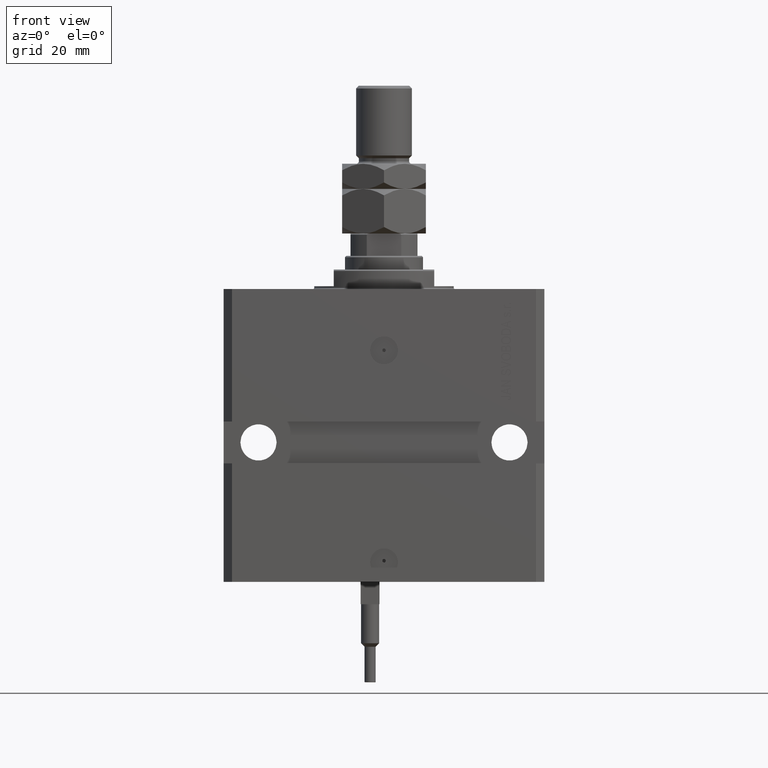
[diagram: clean part render]
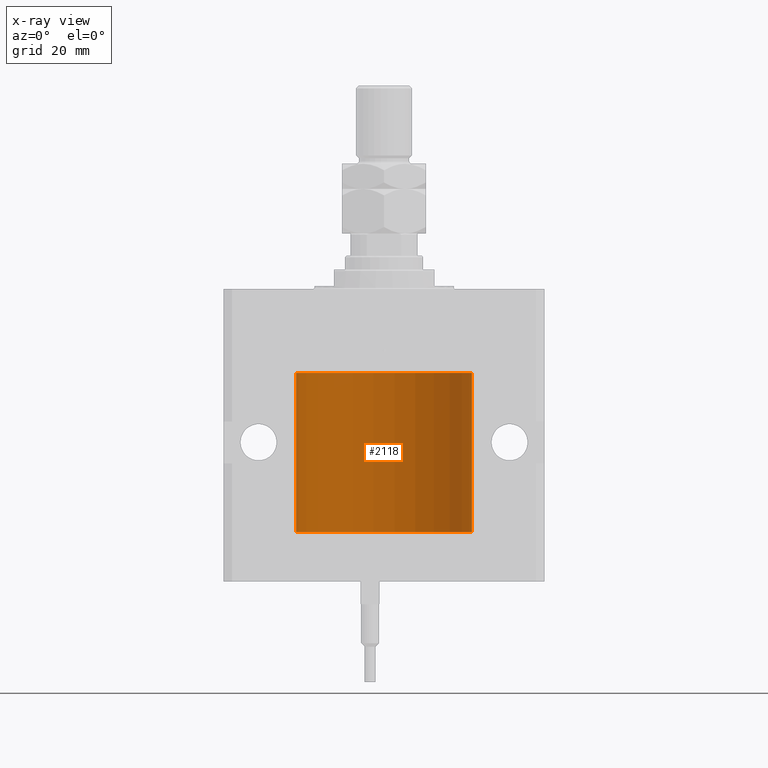
[diagram: x-ray — body ghosted, one internal face saturated and labeled with its STEP entity id]
A machine part, front view, then the same camera in x-ray: the body is ghosted and one INTERNAL B-rep face — a face not visible from any outside direction — is saturated and labeled: STEP entity #2118.
In plain terms, the highlighted cylindrical surface (partial cylindrical patch) has radius 31.5 mm, axis along (0, 0, 1).
Its self-contained STEP definition (entity closure, byte-faithful):
#556 = CIRCLE ( 'NONE', #8000, 31.50000000000000000 ) ;
#895 = CARTESIAN_POINT ( 'NONE',  ( -31.50000000000006395, 3.480981129463732167E-13, -84.62500000000324007 ) ) ;
#1915 = CARTESIAN_POINT ( 'NONE',  ( -31.49770767031179730, 0.3843648832734379295, -83.50046081259654329 ) ) ;
#2118 = ADVANCED_FACE ( 'NONE', ( #42352 ), #34605, .F. ) ;
#3100 = AXIS2_PLACEMENT_3D ( 'NONE', #50329, #14990, #11101 ) ;
#4507 = DIRECTION ( 'NONE',  ( -0.000000000000000000, -0.000000000000000000, 1.000000000000000000 ) ) ;
#5280 = CARTESIAN_POINT ( 'NONE',  ( -31.49851563474691218, 0.3150284575672411824, -83.45401791159622462 ) ) ;
#5344 = ORIENTED_EDGE ( 'NONE', *, *, #19082, .T. ) ;
#5616 = VECTOR ( 'NONE', #7922, 1000.000000000000000 ) ;
#5736 = CARTESIAN_POINT ( 'NONE',  ( 31.50000000000000000, 0.000000000000000000, -87.10000000000000853 ) ) ;
#7922 = DIRECTION ( 'NONE',  ( -0.000000000000000000, -0.000000000000000000, 1.000000000000000000 ) ) ;
#8000 = AXIS2_PLACEMENT_3D ( 'NONE', #28223, #40325, #11672 ) ;
#8401 = VERTEX_POINT ( 'NONE', #10224 ) ;
#9998 = LINE ( 'NONE', #25778, #15944 ) ;
#10185 = CARTESIAN_POINT ( 'NONE',  ( 0.000000000000000000, 0.000000000000000000, -30.10000000000000142 ) ) ;
#10224 = CARTESIAN_POINT ( 'NONE',  ( -31.50000000000000000, 3.857637417314161900E-15, -87.10000000000000853 ) ) ;
#11101 = DIRECTION ( 'NONE',  ( 1.000000000000000000, 0.000000000000000000, 0.000000000000000000 ) ) ;
#11672 = DIRECTION ( 'NONE',  ( 1.000000000000000000, 0.000000000000000000, 0.000000000000000000 ) ) ;
#11862 = CARTESIAN_POINT ( 'NONE',  ( 31.50000000000000000, 0.000000000000000000, -30.10000000000000142 ) ) ;
#12503 = CARTESIAN_POINT ( 'NONE',  ( -31.50000000000000000, 3.857637417314161900E-15, -87.10000000000000853 ) ) ;
#14990 = DIRECTION ( 'NONE',  ( -0.000000000000000000, -0.000000000000000000, 1.000000000000000000 ) ) ;
#15675 = CARTESIAN_POINT ( 'NONE',  ( 31.50000000000000000, 0.000000000000000000, -87.10000000000000853 ) ) ;
#15820 = ORIENTED_EDGE ( 'NONE', *, *, #22757, .F. ) ;
#15845 = CARTESIAN_POINT ( 'NONE',  ( -31.50000000000000000, 7.975607743522037396E-16, -83.37500000000000000 ) ) ;
#15944 = VECTOR ( 'NONE', #33261, 1000.000000000000000 ) ;
#17162 = CARTESIAN_POINT ( 'NONE',  ( -31.49379784581975272, 0.6250577973157672718, -84.16284184848845484 ) ) ;
#18586 = VERTEX_POINT ( 'NONE', #11862 ) ;
#19082 = EDGE_CURVE ( 'NONE', #48434, #20867, #38098, .T. ) ;
#20867 = VERTEX_POINT ( 'NONE', #49785 ) ;
#21045 = CARTESIAN_POINT ( 'NONE',  ( -31.49528028230855270, 0.5573323339569611345, -83.67349008819321909 ) ) ;
#22757 = EDGE_CURVE ( 'NONE', #36801, #8401, #556, .T. ) ;
#23626 = LINE ( 'NONE', #12503, #23734 ) ;
#23734 = VECTOR ( 'NONE', #4507, 1000.000000000000000 ) ;
#25685 = CARTESIAN_POINT ( 'NONE',  ( -31.49999999999998579, 0.1631661150515253123, -84.62499999999982947 ) ) ;
#25778 = CARTESIAN_POINT ( 'NONE',  ( -31.50000000000000000, 3.857637417314161900E-15, -87.10000000000000853 ) ) ;
#28223 = CARTESIAN_POINT ( 'NONE',  ( 0.000000000000000000, 0.000000000000000000, -87.10000000000000853 ) ) ;
#29911 = AXIS2_PLACEMENT_3D ( 'NONE', #10185, #45808, #45299 ) ;
#31813 = ORIENTED_EDGE ( 'NONE', *, *, #49362, .F. ) ;
#32384 = CIRCLE ( 'NONE', #29911, 31.50000000000000000 ) ;
#32856 = EDGE_LOOP ( 'NONE', ( #47780, #15820, #36546, #39115, #31813, #5344 ) ) ;
#33251 = EDGE_CURVE ( 'NONE', #8401, #20867, #23626, .T. ) ;
#33261 = DIRECTION ( 'NONE',  ( -0.000000000000000000, -0.000000000000000000, 1.000000000000000000 ) ) ;
#33412 = CARTESIAN_POINT ( 'NONE',  ( -31.50000000000000000, 7.975607743522037396E-16, -83.37500000000000000 ) ) ;
#34605 = CYLINDRICAL_SURFACE ( 'NONE', #3100, 31.50000000000000000 ) ;
#36546 = ORIENTED_EDGE ( 'NONE', *, *, #38219, .T. ) ;
#36789 = CARTESIAN_POINT ( 'NONE',  ( -31.49380014137585704, 0.6249421240571523262, -83.83671479190289233 ) ) ;
#36801 = VERTEX_POINT ( 'NONE', #5736 ) ;
#37043 = CARTESIAN_POINT ( 'NONE',  ( -31.49526081842315151, 0.5587119163470756211, -84.32511513093052713 ) ) ;
#38098 = B_SPLINE_CURVE_WITH_KNOTS ( 'NONE', 3,
 ( #33412, #44265, #40649, #5280, #1915, #21045, #36789, #17162, #37043, #49134, #25685, #895 ),
 .UNSPECIFIED., .F., .F.,
 ( 4, 2, 2, 2, 2, 4 ),
 ( 3.075703443732137786E-18, 0.0002442604562134845204, 0.0004885209124269658965, 0.0009770418248538992670, 0.001465562737280832637, 0.001954083649707766008 ),
 .UNSPECIFIED. ) ;
#38219 = EDGE_CURVE ( 'NONE', #36801, #18586, #43036, .T. ) ;
#39115 = ORIENTED_EDGE ( 'NONE', *, *, #48385, .T. ) ;
#40325 = DIRECTION ( 'NONE',  ( 0.000000000000000000, 0.000000000000000000, 1.000000000000000000 ) ) ;
#40649 = CARTESIAN_POINT ( 'NONE',  ( -31.49966591610109390, 0.1636376958180636443, -83.39126189995840832 ) ) ;
#42352 = FACE_OUTER_BOUND ( 'NONE', #32856, .T. ) ;
#43036 = LINE ( 'NONE', #15675, #5616 ) ;
#44265 = CARTESIAN_POINT ( 'NONE',  ( -31.49999999999998579, 0.08259258789479478891, -83.37499999999998579 ) ) ;
#45299 = DIRECTION ( 'NONE',  ( 1.000000000000000000, 0.000000000000000000, 0.000000000000000000 ) ) ;
#45709 = VERTEX_POINT ( 'NONE', #49705 ) ;
#45808 = DIRECTION ( 'NONE',  ( 0.000000000000000000, 0.000000000000000000, 1.000000000000000000 ) ) ;
#47780 = ORIENTED_EDGE ( 'NONE', *, *, #33251, .F. ) ;
#48385 = EDGE_CURVE ( 'NONE', #18586, #45709, #32384, .T. ) ;
#48434 = VERTEX_POINT ( 'NONE', #15845 ) ;
#49134 = CARTESIAN_POINT ( 'NONE',  ( -31.49853548231893541, 0.3253851488062164399, -84.55855470525685291 ) ) ;
#49362 = EDGE_CURVE ( 'NONE', #48434, #45709, #9998, .T. ) ;
#49705 = CARTESIAN_POINT ( 'NONE',  ( -31.50000000000000000, 3.857637417314161900E-15, -30.10000000000000142 ) ) ;
#49785 = CARTESIAN_POINT ( 'NONE',  ( -31.50000000000006395, 3.480981129463732167E-13, -84.62500000000324007 ) ) ;
#50329 = CARTESIAN_POINT ( 'NONE',  ( 0.000000000000000000, 0.000000000000000000, -87.10000000000000853 ) ) ;